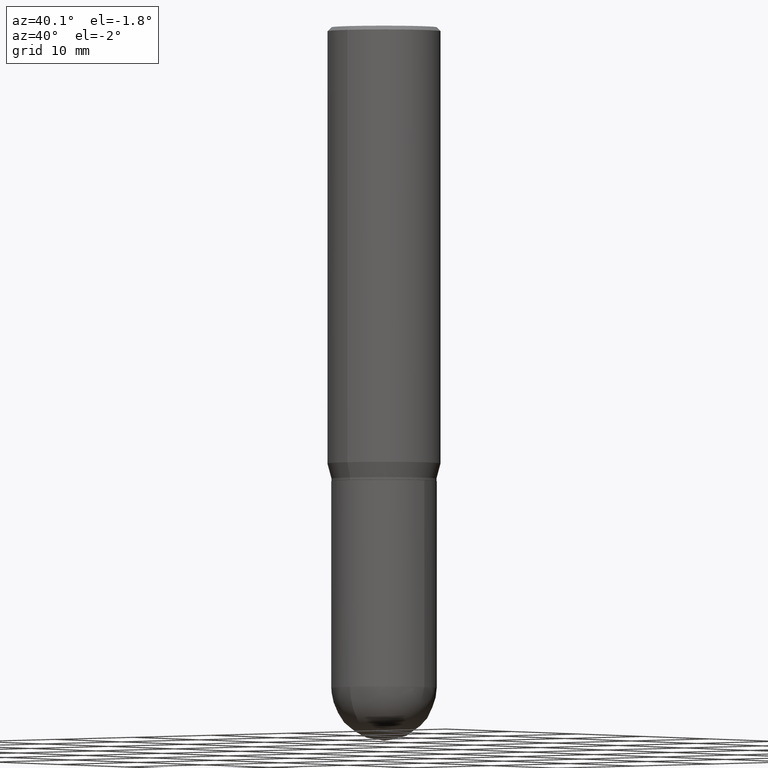
[diagram: clean part render]
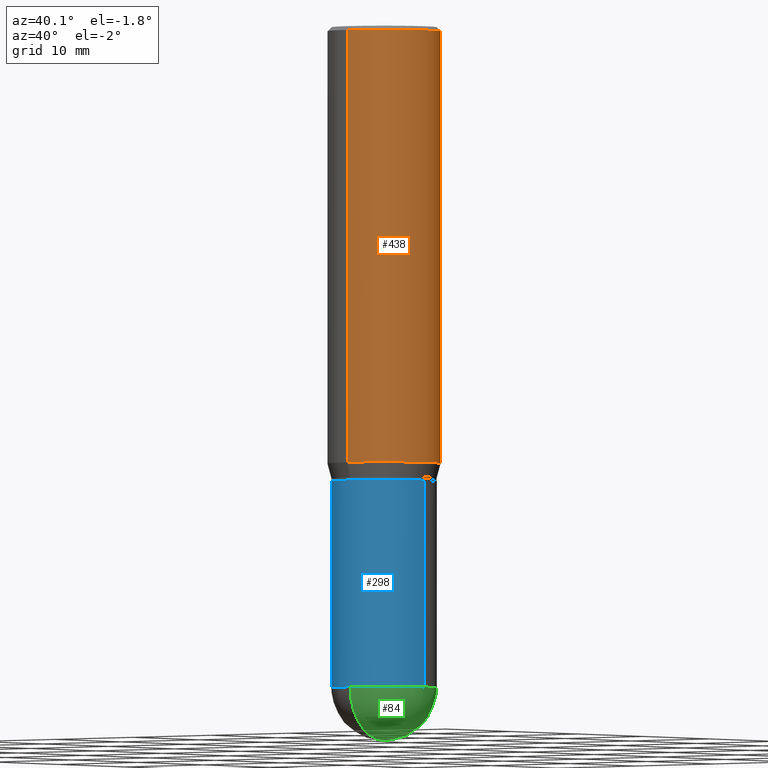
[diagram: same view with three faces highlighted in distinct colors, each labeled with its STEP entity id]
A machine part, auxiliary view with three faces highlighted in distinct colors.
Their STEP definitions:

[orange] entity #438 — the highlighted cylindrical surface (partial cylindrical patch) has radius 5.5562 mm, axis along (-0, 0, 1).
#1 = CARTESIAN_POINT ( 'NONE',  ( -1.527523085743870449E-15, -0.2187500000000000000, 7.637412823525378635E-16 ) ) ;
#6 = DIRECTION ( 'NONE',  ( -6.982962677686265133E-15, -1.000000000000000000, 3.746534391310989557E-15 ) ) ;
#16 = VERTEX_POINT ( 'NONE', #395 ) ;
#41 = DIRECTION ( 'NONE',  ( -2.445533482048360723E-29, 3.491388719325887151E-15, 1.000000000000000000 ) ) ;
#48 = EDGE_CURVE ( 'NONE', #279, #335, #234, .T. ) ;
#50 = ORIENTED_EDGE ( 'NONE', *, *, #87, .F. ) ;
#87 = EDGE_CURVE ( 'NONE', #335, #16, #132, .T. ) ;
#100 = VERTEX_POINT ( 'NONE', #177 ) ;
#130 = FACE_OUTER_BOUND ( 'NONE', #425, .T. ) ;
#132 = CIRCLE ( 'NONE', #404, 0.2187500000000000000 ) ;
#134 = DIRECTION ( 'NONE',  ( -6.982962677686265133E-15, -1.000000000000000000, 3.491388719325887545E-15 ) ) ;
#177 = CARTESIAN_POINT ( 'NONE',  ( 1.554312234475260177E-15, 0.2187499999999941436, -1.681593404861547736 ) ) ;
#180 = AXIS2_PLACEMENT_3D ( 'NONE', #199, #360, #6 ) ;
#182 = ORIENTED_EDGE ( 'NONE', *, *, #317, .T. ) ;
#196 = CARTESIAN_POINT ( 'NONE',  ( -1.527523085743829428E-15, -0.2187500000000058287, -1.681593404861545960 ) ) ;
#198 = CARTESIAN_POINT ( 'NONE',  ( 3.668300223072564941E-31, -5.237083078988864869E-17, -0.01500000000000009832 ) ) ;
#199 = CARTESIAN_POINT ( 'NONE',  ( 4.112392974780617648E-29, -5.871096244226413980E-15, -1.681593404861546848 ) ) ;
#231 = DIRECTION ( 'NONE',  ( -6.982962677686265133E-15, -1.000000000000000000, 3.492862791899308071E-15 ) ) ;
#234 = LINE ( 'NONE', #1, #272 ) ;
#239 = LINE ( 'NONE', #512, #273 ) ;
#244 = CYLINDRICAL_SURFACE ( 'NONE', #456, 0.2187500000000000000 ) ;
#272 = VECTOR ( 'NONE', #41, 39.37007874015748143 ) ;
#273 = VECTOR ( 'NONE', #401, 39.37007874015748143 ) ;
#279 = VERTEX_POINT ( 'NONE', #196 ) ;
#302 = EDGE_CURVE ( 'NONE', #100, #16, #239, .T. ) ;
#312 = CARTESIAN_POINT ( 'NONE',  ( -1.527523085743870054E-15, -0.2187500000000000555, -0.01499999999999933505 ) ) ;
#317 = EDGE_CURVE ( 'NONE', #279, #100, #411, .T. ) ;
#335 = VERTEX_POINT ( 'NONE', #312 ) ;
#360 = DIRECTION ( 'NONE',  ( -2.445533482048360723E-29, 3.491388719325887151E-15, 1.000000000000000000 ) ) ;
#383 = ORIENTED_EDGE ( 'NONE', *, *, #48, .F. ) ;
#395 = CARTESIAN_POINT ( 'NONE',  ( 1.554312234475260375E-15, 0.2187499999999999167, -0.01500000000000086160 ) ) ;
#401 = DIRECTION ( 'NONE',  ( -2.445533482048360723E-29, 3.491388719325887151E-15, 1.000000000000000000 ) ) ;
#404 = AXIS2_PLACEMENT_3D ( 'NONE', #198, #433, #231 ) ;
#411 = CIRCLE ( 'NONE', #180, 0.2187500000000000000 ) ;
#425 = EDGE_LOOP ( 'NONE', ( #182, #452, #50, #383 ) ) ;
#433 = DIRECTION ( 'NONE',  ( -2.445533482048360723E-29, 3.491388719325887151E-15, 1.000000000000000000 ) ) ;
#438 = ADVANCED_FACE ( 'NONE', ( #130 ), #244, .T. ) ;
#447 = DIRECTION ( 'NONE',  ( -2.445533482048360723E-29, 3.491388719325887151E-15, 1.000000000000000000 ) ) ;
#452 = ORIENTED_EDGE ( 'NONE', *, *, #302, .T. ) ;
#456 = AXIS2_PLACEMENT_3D ( 'NONE', #483, #447, #134 ) ;
#483 = CARTESIAN_POINT ( 'NONE',  ( 0.000000000000000000, 0.000000000000000000, 0.000000000000000000 ) ) ;
#512 = CARTESIAN_POINT ( 'NONE',  ( 1.554312234475218762E-15, 0.2187500000000000000, -7.637412823525378635E-16 ) ) ;

[blue] entity #298 — the highlighted cylindrical surface (partial cylindrical patch) has radius 5.1587 mm, axis along (-0, 0, 1).
#11 = AXIS2_PLACEMENT_3D ( 'NONE', #119, #233, #396 ) ;
#12 = EDGE_CURVE ( 'NONE', #106, #304, #253, .T. ) ;
#18 = VECTOR ( 'NONE', #153, 39.37007874015748143 ) ;
#28 = VECTOR ( 'NONE', #161, 39.37007874015748143 ) ;
#38 = DIRECTION ( 'NONE',  ( 1.000000000000000000, -6.982962677686262766E-15, 0.000000000000000000 ) ) ;
#58 = CARTESIAN_POINT ( 'NONE',  ( -0.2031000000000000028, 1.443112296328763497E-15, -9.990357168307714203E-30 ) ) ;
#76 = AXIS2_PLACEMENT_3D ( 'NONE', #507, #500, #159 ) ;
#99 = LINE ( 'NONE', #58, #18 ) ;
#106 = VERTEX_POINT ( 'NONE', #460 ) ;
#108 = VERTEX_POINT ( 'NONE', #299 ) ;
#119 = CARTESIAN_POINT ( 'NONE',  ( 0.000000000000000000, 0.000000000000000000, 0.000000000000000000 ) ) ;
#153 = DIRECTION ( 'NONE',  ( -2.445468806185136877E-29, 3.491481338843145188E-15, 1.000000000000000000 ) ) ;
#159 = DIRECTION ( 'NONE',  ( 1.000000000000000000, -6.982962677686269866E-15, 0.000000000000000000 ) ) ;
#161 = DIRECTION ( 'NONE',  ( -2.445468806185136877E-29, 3.491481338843145188E-15, 1.000000000000000000 ) ) ;
#176 = EDGE_LOOP ( 'NONE', ( #468, #489, #485, #454, #300 ) ) ;
#191 = LINE ( 'NONE', #508, #28 ) ;
#197 = CARTESIAN_POINT ( 'NONE',  ( 6.228364502472924746E-29, -8.892453821899607499E-15, -2.546899999999999942 ) ) ;
#212 = EDGE_CURVE ( 'NONE', #470, #106, #99, .T. ) ;
#214 = DIRECTION ( 'NONE',  ( -2.445468806185136597E-29, 3.491481338843145583E-15, 1.000000000000000000 ) ) ;
#233 = DIRECTION ( 'NONE',  ( -2.445468806185136597E-29, 3.491481338843145583E-15, 1.000000000000000000 ) ) ;
#249 = AXIS2_PLACEMENT_3D ( 'NONE', #197, #394, #38 ) ;
#253 = CIRCLE ( 'NONE', #76, 0.2031000000000000028 ) ;
#271 = AXIS2_PLACEMENT_3D ( 'NONE', #365, #214, #362 ) ;
#278 = CYLINDRICAL_SURFACE ( 'NONE', #11, 0.2031000000000000028 ) ;
#298 = ADVANCED_FACE ( 'NONE', ( #353 ), #278, .T. ) ;
#299 = CARTESIAN_POINT ( 'NONE',  ( -1.443112296328700980E-15, -0.2031000000000088845, -2.546899999999999498 ) ) ;
#300 = ORIENTED_EDGE ( 'NONE', *, *, #12, .F. ) ;
#304 = VERTEX_POINT ( 'NONE', #442 ) ;
#326 = EDGE_CURVE ( 'NONE', #470, #108, #476, .T. ) ;
#330 = EDGE_CURVE ( 'NONE', #451, #304, #191, .T. ) ;
#341 = CIRCLE ( 'NONE', #271, 0.2031000000000000583 ) ;
#353 = FACE_OUTER_BOUND ( 'NONE', #176, .T. ) ;
#362 = DIRECTION ( 'NONE',  ( 1.000000000000000000, -6.982962677686262766E-15, 0.000000000000000000 ) ) ;
#365 = CARTESIAN_POINT ( 'NONE',  ( 6.228364502472924746E-29, -8.892453821899607499E-15, -2.546899999999999942 ) ) ;
#374 = EDGE_CURVE ( 'NONE', #108, #451, #341, .T. ) ;
#394 = DIRECTION ( 'NONE',  ( -2.445468806185136597E-29, 3.491481338843145583E-15, 1.000000000000000000 ) ) ;
#396 = DIRECTION ( 'NONE',  ( 1.000000000000000000, -6.982962677686266711E-15, 4.876176775795935793E-29 ) ) ;
#414 = CARTESIAN_POINT ( 'NONE',  ( 0.2031000000000000583, -8.919512802275635677E-15, -2.546899999999999942 ) ) ;
#442 = CARTESIAN_POINT ( 'NONE',  ( 0.2031000000000000028, -7.528332062813585446E-15, -1.750000000000000000 ) ) ;
#451 = VERTEX_POINT ( 'NONE', #414 ) ;
#454 = ORIENTED_EDGE ( 'NONE', *, *, #330, .T. ) ;
#460 = CARTESIAN_POINT ( 'NONE',  ( -0.2031000000000000028, -6.058160786108792588E-15, -1.750000000000000000 ) ) ;
#468 = ORIENTED_EDGE ( 'NONE', *, *, #212, .F. ) ;
#470 = VERTEX_POINT ( 'NONE', #488 ) ;
#476 = CIRCLE ( 'NONE', #249, 0.2031000000000000583 ) ;
#485 = ORIENTED_EDGE ( 'NONE', *, *, #374, .T. ) ;
#488 = CARTESIAN_POINT ( 'NONE',  ( -0.2031000000000000583, -6.058160786108791010E-15, -2.546899999999999942 ) ) ;
#489 = ORIENTED_EDGE ( 'NONE', *, *, #326, .T. ) ;
#500 = DIRECTION ( 'NONE',  ( -2.445468806185136597E-29, 3.491481338843145583E-15, 1.000000000000000000 ) ) ;
#507 = CARTESIAN_POINT ( 'NONE',  ( 4.279570410823988484E-29, -6.110092342975504671E-15, -1.750000000000000000 ) ) ;
#508 = CARTESIAN_POINT ( 'NONE',  ( 0.2031000000000000028, -1.418239719838080775E-15, 9.903515031641546145E-30 ) ) ;

[green] entity #84 — the highlighted spherical surface has radius 5.1587 mm.
#15 = CARTESIAN_POINT ( 'NONE',  ( 6.228364502472924746E-29, -8.892453821899607499E-15, -2.546899999999999942 ) ) ;
#34 = EDGE_CURVE ( 'NONE', #373, #108, #385, .T. ) ;
#43 = DIRECTION ( 'NONE',  ( -1.000000000000000000, 6.982962677686266711E-15, -4.883557194083112901E-29 ) ) ;
#61 = ORIENTED_EDGE ( 'NONE', *, *, #34, .F. ) ;
#78 = DIRECTION ( 'NONE',  ( -1.000000000000000000, 7.105427357601001070E-15, -4.926315508542082329E-29 ) ) ;
#84 = ADVANCED_FACE ( 'NONE', ( #510 ), #440, .T. ) ;
#95 = EDGE_LOOP ( 'NONE', ( #61, #423, #136, #461 ) ) ;
#96 = DIRECTION ( 'NONE',  ( 1.000000000000000000, -6.982962677686265922E-15, 4.883557194083112340E-29 ) ) ;
#108 = VERTEX_POINT ( 'NONE', #299 ) ;
#114 = DIRECTION ( 'NONE',  ( 6.982962677686266711E-15, 1.000000000000000000, -2.690150658458162309E-15 ) ) ;
#120 = AXIS2_PLACEMENT_3D ( 'NONE', #183, #96, #250 ) ;
#135 = CARTESIAN_POINT ( 'NONE',  ( 6.716355003342508555E-29, -9.614009970063991023E-15, -2.750000000000000000 ) ) ;
#136 = ORIENTED_EDGE ( 'NONE', *, *, #403, .F. ) ;
#152 = VERTEX_POINT ( 'NONE', #388 ) ;
#183 = CARTESIAN_POINT ( 'NONE',  ( 6.210996075139691695E-29, -8.917326398390289827E-15, -2.546899999999999942 ) ) ;
#206 = AXIS2_PLACEMENT_3D ( 'NONE', #436, #78, #236 ) ;
#214 = DIRECTION ( 'NONE',  ( -2.445468806185136597E-29, 3.491481338843145583E-15, 1.000000000000000000 ) ) ;
#232 = EDGE_CURVE ( 'NONE', #373, #152, #305, .T. ) ;
#236 = DIRECTION ( 'NONE',  ( -7.105427357601001070E-15, -1.000000000000000000, 0.000000000000000000 ) ) ;
#250 = DIRECTION ( 'NONE',  ( 6.982962677686266711E-15, 1.000000000000000000, 0.000000000000000000 ) ) ;
#271 = AXIS2_PLACEMENT_3D ( 'NONE', #365, #214, #362 ) ;
#287 = CIRCLE ( 'NONE', #437, 0.2031000000000000583 ) ;
#299 = CARTESIAN_POINT ( 'NONE',  ( -1.443112296328700980E-15, -0.2031000000000088845, -2.546899999999999498 ) ) ;
#305 = CIRCLE ( 'NONE', #120, 0.2030999999999999472 ) ;
#318 = DIRECTION ( 'NONE',  ( 1.000000000000000000, -6.982962677686262766E-15, 0.000000000000000000 ) ) ;
#341 = CIRCLE ( 'NONE', #271, 0.2031000000000000583 ) ;
#362 = DIRECTION ( 'NONE',  ( 1.000000000000000000, -6.982962677686262766E-15, 0.000000000000000000 ) ) ;
#365 = CARTESIAN_POINT ( 'NONE',  ( 6.228364502472924746E-29, -8.892453821899607499E-15, -2.546899999999999942 ) ) ;
#373 = VERTEX_POINT ( 'NONE', #135 ) ;
#374 = EDGE_CURVE ( 'NONE', #108, #451, #341, .T. ) ;
#385 = CIRCLE ( 'NONE', #206, 0.2030999999999999472 ) ;
#386 = AXIS2_PLACEMENT_3D ( 'NONE', #399, #43, #114 ) ;
#388 = CARTESIAN_POINT ( 'NONE',  ( 1.418239719838142898E-15, 0.2030999999999910932, -2.546900000000000830 ) ) ;
#399 = CARTESIAN_POINT ( 'NONE',  ( 6.210996075139691695E-29, -8.917326398390289827E-15, -2.546899999999999942 ) ) ;
#403 = EDGE_CURVE ( 'NONE', #451, #152, #287, .T. ) ;
#414 = CARTESIAN_POINT ( 'NONE',  ( 0.2031000000000000583, -8.919512802275635677E-15, -2.546899999999999942 ) ) ;
#423 = ORIENTED_EDGE ( 'NONE', *, *, #232, .T. ) ;
#436 = CARTESIAN_POINT ( 'NONE',  ( 6.210996075139691695E-29, -8.917326398390289827E-15, -2.546899999999999942 ) ) ;
#437 = AXIS2_PLACEMENT_3D ( 'NONE', #15, #450, #318 ) ;
#440 = SPHERICAL_SURFACE ( 'NONE', #386, 0.2030999999999999472 ) ;
#450 = DIRECTION ( 'NONE',  ( -2.445468806185136597E-29, 3.491481338843145583E-15, 1.000000000000000000 ) ) ;
#451 = VERTEX_POINT ( 'NONE', #414 ) ;
#461 = ORIENTED_EDGE ( 'NONE', *, *, #374, .F. ) ;
#510 = FACE_OUTER_BOUND ( 'NONE', #95, .T. ) ;